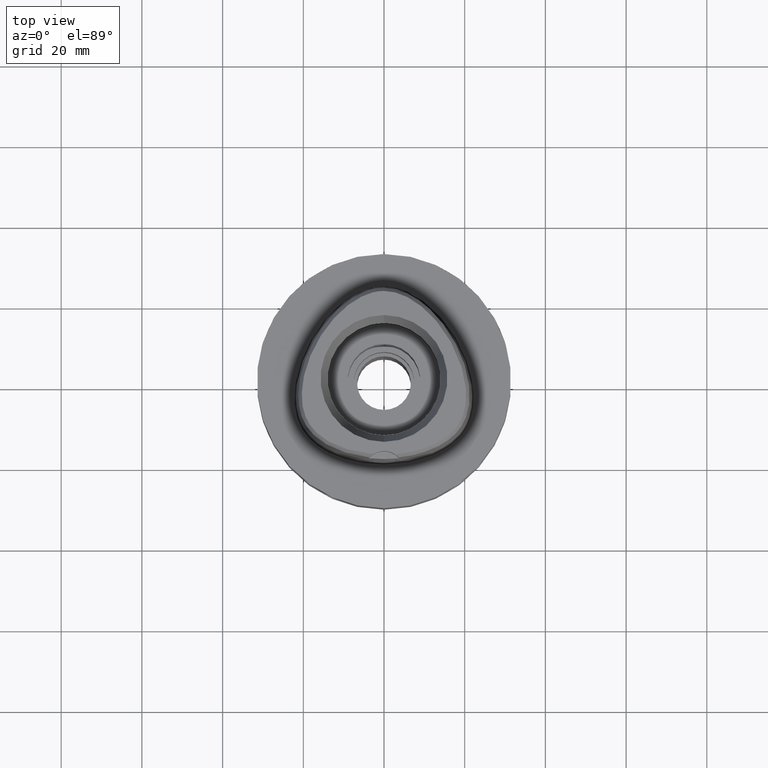
[diagram: clean part render]
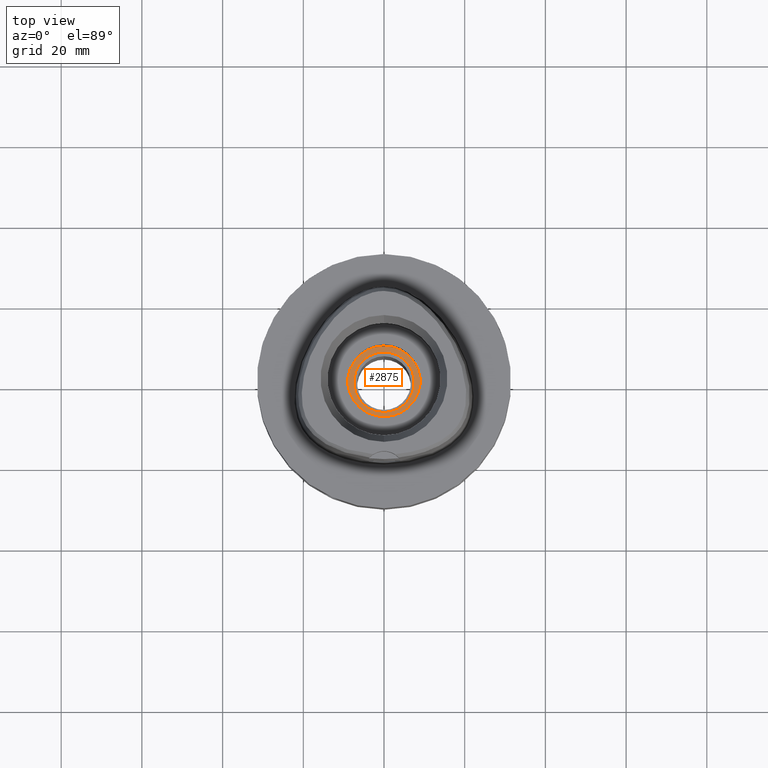
[diagram: same view with one face highlighted and labeled with its STEP entity id]
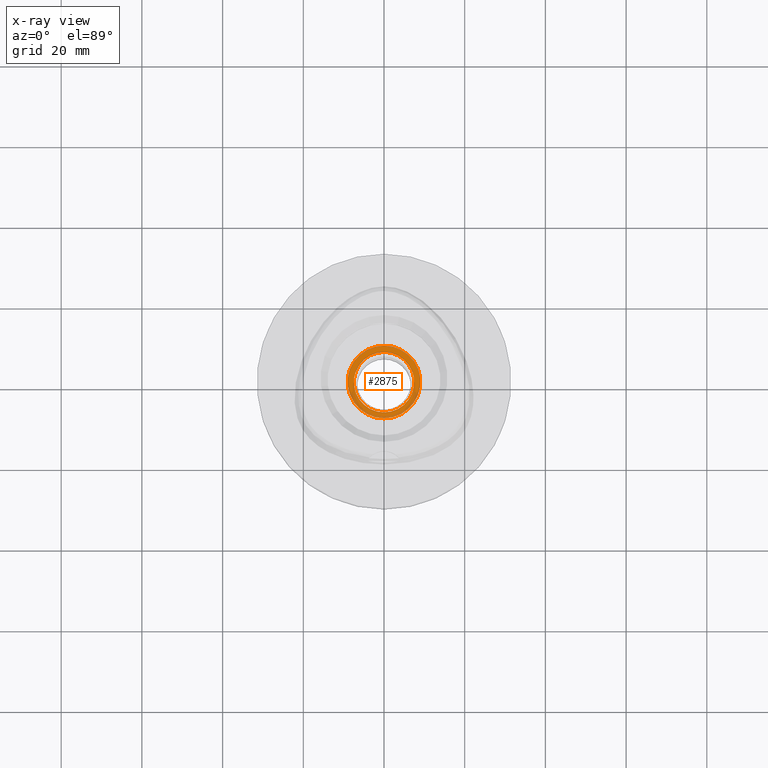
[diagram: x-ray of the same camera — body ghosted, the highlighted face saturated]
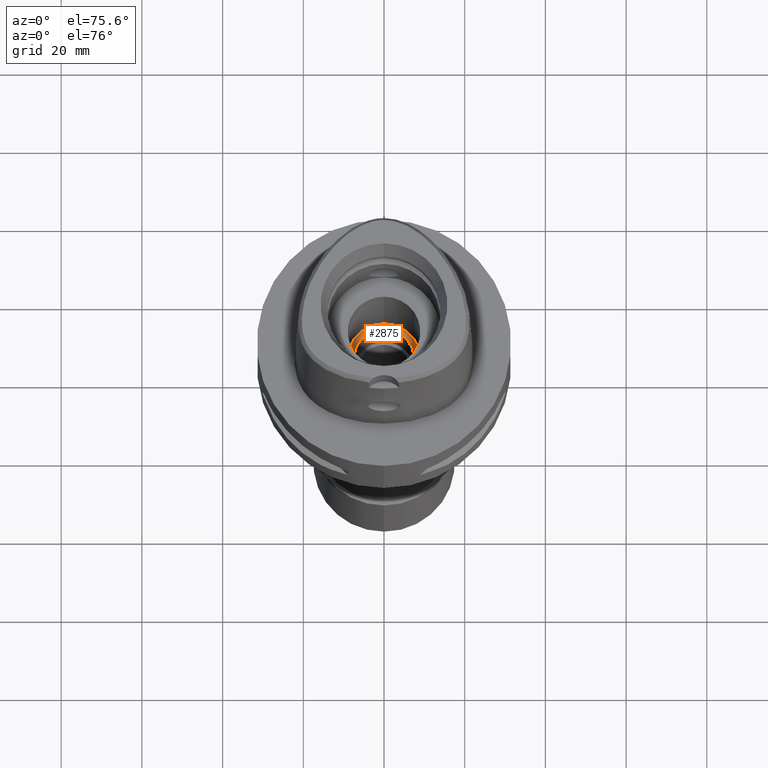
[diagram: same view with one face highlighted and labeled with its STEP entity id]
A machine part, top view. The second image highlights one B-rep face of the part: STEP entity #2875.
The next image is the same camera in x-ray: the body ghosted, the highlighted face saturated — about 11% of this face is hidden behind the body in this view.
A second angle (auxiliary view) of the same face is appended — the face is thin or edge-on in the first view.
In plain terms, the highlighted planar face has unit normal (0, 0, -1).
Its self-contained STEP definition (entity closure, byte-faithful):
#29 = CARTESIAN_POINT ( 'NONE',  ( 0.0000000000000000000, 0.0000000000000000000, -16.00000000000000000 ) ) ;
#243 = AXIS2_PLACEMENT_3D ( 'NONE', #4437, #2921, #4845 ) ;
#457 = ORIENTED_EDGE ( 'NONE', *, *, #2054, .F. ) ;
#482 = AXIS2_PLACEMENT_3D ( 'NONE', #4076, #2947, #1349 ) ;
#553 = DIRECTION ( 'NONE',  ( 0.0000000000000000000, 0.0000000000000000000, 1.000000000000000000 ) ) ;
#562 = CARTESIAN_POINT ( 'NONE',  ( 0.0000000000000000000, 7.500000000000000000, -16.00000000000000000 ) ) ;
#948 = DIRECTION ( 'NONE',  ( 0.0000000000000000000, -1.000000000000000000, 0.0000000000000000000 ) ) ;
#1087 = AXIS2_PLACEMENT_3D ( 'NONE', #1733, #553, #2999 ) ;
#1159 = EDGE_CURVE ( 'NONE', #4146, #4442, #4748, .T. ) ;
#1181 = DIRECTION ( 'NONE',  ( 0.0000000000000000000, -1.000000000000000000, 0.0000000000000000000 ) ) ;
#1273 = EDGE_LOOP ( 'NONE', ( #457, #3256 ) ) ;
#1349 = DIRECTION ( 'NONE',  ( 0.0000000000000000000, -1.000000000000000000, 0.0000000000000000000 ) ) ;
#1370 = DIRECTION ( 'NONE',  ( 0.0000000000000000000, 0.0000000000000000000, -1.000000000000000000 ) ) ;
#1558 = VERTEX_POINT ( 'NONE', #562 ) ;
#1587 = EDGE_LOOP ( 'NONE', ( #1697, #4247 ) ) ;
#1678 = CARTESIAN_POINT ( 'NONE',  ( 0.0000000000000000000, 1.028703311283999754E-14, -16.00000000000000000 ) ) ;
#1697 = ORIENTED_EDGE ( 'NONE', *, *, #2882, .F. ) ;
#1733 = CARTESIAN_POINT ( 'NONE',  ( 0.0000000000000000000, 1.291390049700999962E-14, -16.00000000000000000 ) ) ;
#1838 = AXIS2_PLACEMENT_3D ( 'NONE', #1678, #1370, #948 ) ;
#1997 = CIRCLE ( 'NONE', #243, 9.000000000000000000 ) ;
#2035 = PLANE ( 'NONE',  #1838 ) ;
#2054 = EDGE_CURVE ( 'NONE', #1558, #4985, #2164, .T. ) ;
#2060 = FACE_OUTER_BOUND ( 'NONE', #1587, .T. ) ;
#2164 = CIRCLE ( 'NONE', #1087, 7.500000000000000000 ) ;
#2231 = EDGE_CURVE ( 'NONE', #4985, #1558, #2822, .T. ) ;
#2822 = CIRCLE ( 'NONE', #482, 7.500000000000000000 ) ;
#2875 = ADVANCED_FACE ( 'NONE', ( #2060, #3631 ), #2035, .F. ) ;
#2882 = EDGE_CURVE ( 'NONE', #4442, #4146, #1997, .T. ) ;
#2921 = DIRECTION ( 'NONE',  ( 0.0000000000000000000, 0.0000000000000000000, -1.000000000000000000 ) ) ;
#2947 = DIRECTION ( 'NONE',  ( 0.0000000000000000000, 0.0000000000000000000, 1.000000000000000000 ) ) ;
#2999 = DIRECTION ( 'NONE',  ( 0.0000000000000000000, 1.000000000000000000, 0.0000000000000000000 ) ) ;
#3256 = ORIENTED_EDGE ( 'NONE', *, *, #2231, .F. ) ;
#3467 = AXIS2_PLACEMENT_3D ( 'NONE', #29, #4303, #1181 ) ;
#3549 = CARTESIAN_POINT ( 'NONE',  ( 0.0000000000000000000, -9.000000000000000000, -16.00000000000000000 ) ) ;
#3631 = FACE_BOUND ( 'NONE', #1273, .T. ) ;
#3812 = CARTESIAN_POINT ( 'NONE',  ( 0.0000000000000000000, 9.000000000000000000, -16.00000000000000000 ) ) ;
#4076 = CARTESIAN_POINT ( 'NONE',  ( 0.0000000000000000000, 1.291390049700999962E-14, -16.00000000000000000 ) ) ;
#4146 = VERTEX_POINT ( 'NONE', #3549 ) ;
#4247 = ORIENTED_EDGE ( 'NONE', *, *, #1159, .F. ) ;
#4275 = CARTESIAN_POINT ( 'NONE',  ( 0.0000000000000000000, -7.500000000000000000, -16.00000000000000000 ) ) ;
#4303 = DIRECTION ( 'NONE',  ( 0.0000000000000000000, 0.0000000000000000000, -1.000000000000000000 ) ) ;
#4437 = CARTESIAN_POINT ( 'NONE',  ( 0.0000000000000000000, 0.0000000000000000000, -16.00000000000000000 ) ) ;
#4442 = VERTEX_POINT ( 'NONE', #3812 ) ;
#4748 = CIRCLE ( 'NONE', #3467, 9.000000000000000000 ) ;
#4845 = DIRECTION ( 'NONE',  ( 0.0000000000000000000, 1.000000000000000000, 0.0000000000000000000 ) ) ;
#4985 = VERTEX_POINT ( 'NONE', #4275 ) ;